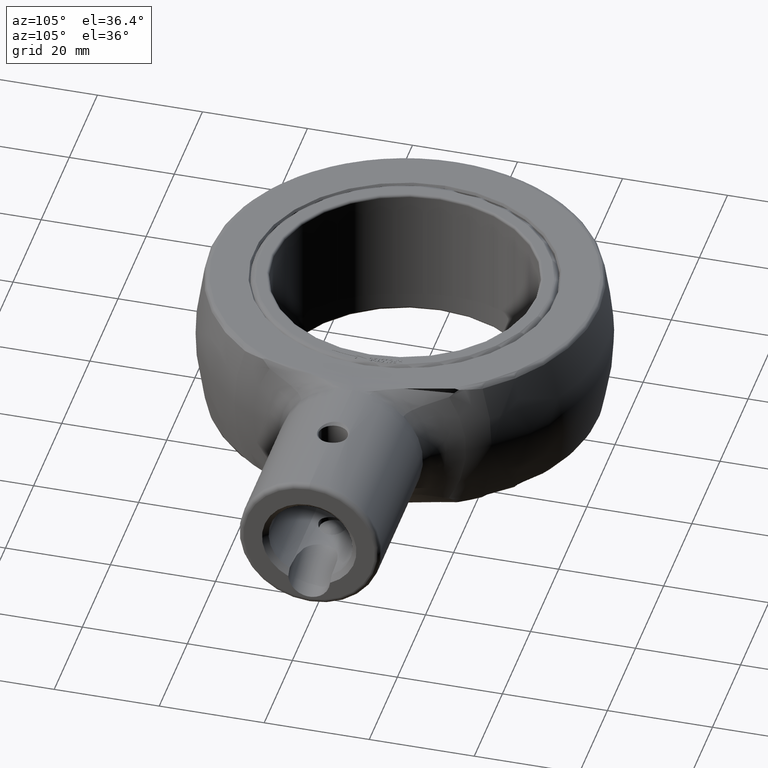
[diagram: clean part render]
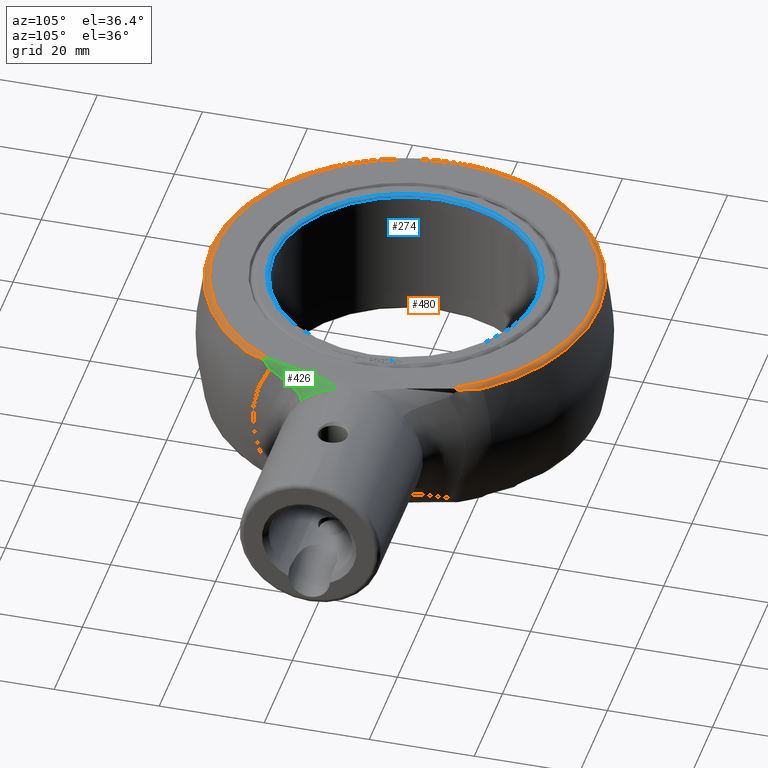
[diagram: same view with three faces highlighted in distinct colors, each labeled with its STEP entity id]
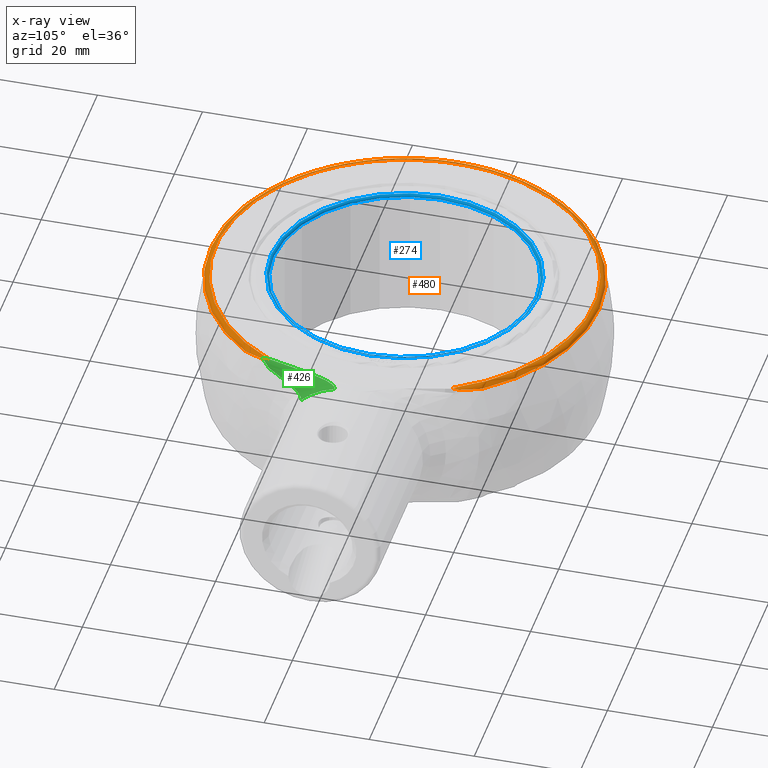
[diagram: x-ray of the same camera — body ghosted, the three highlighted faces saturated]
A machine part, auxiliary view with three faces highlighted in distinct colors.
The next image is the same camera in x-ray (body ghosted, the three faces saturated) — at least one of them is partly hidden behind the body in this view.
Their STEP definitions:

[orange] entity #480 — the highlighted toroidal blend (fillet) surface has major radius 36.0079 mm and minor (blend) radius 1 mm.
#480 = ADVANCED_FACE( '', ( #963 ), #964, .T. );
#963 = FACE_OUTER_BOUND( '', #3098, .T. );
#964 = TOROIDAL_SURFACE( '', #3099, 36.0078940808788, 1.00000000000000 );
#3098 = EDGE_LOOP( '', ( #4312, #4313, #4314, #4315, #4316, #4317 ) );
#3099 = AXIS2_PLACEMENT_3D( '', #4318, #4319, #4320 );
#4312 = ORIENTED_EDGE( '', *, *, #4737, .T. );
#4313 = ORIENTED_EDGE( '', *, *, #4751, .T. );
#4314 = ORIENTED_EDGE( '', *, *, #4612, .T. );
#4315 = ORIENTED_EDGE( '', *, *, #4758, .T. );
#4316 = ORIENTED_EDGE( '', *, *, #4789, .T. );
#4317 = ORIENTED_EDGE( '', *, *, #4639, .F. );
#4318 = CARTESIAN_POINT( '', ( 0.000000000000000, 0.000000000000000, 12.0000000000000 ) );
#4319 = DIRECTION( '', ( 0.000000000000000, 0.000000000000000, 1.00000000000000 ) );
#4320 = DIRECTION( '', ( 1.00000000000000, 0.000000000000000, 0.000000000000000 ) );
#4612 = EDGE_CURVE( '', #5143, #5144, #5145, .T. );
#4639 = EDGE_CURVE( '', #5184, #5185, #5186, .T. );
#4737 = EDGE_CURVE( '', #5184, #5328, #5330, .T. );
#4751 = EDGE_CURVE( '', #5328, #5143, #5348, .T. );
#4758 = EDGE_CURVE( '', #5144, #5356, #5358, .F. );
#4789 = EDGE_CURVE( '', #5356, #5185, #5396, .T. );
#5143 = VERTEX_POINT( '', #6406 );
#5144 = VERTEX_POINT( '', #6407 );
#5145 = CIRCLE( '', #6408, 36.9774429396723 );
#5184 = VERTEX_POINT( '', #6731 );
#5185 = VERTEX_POINT( '', #6732 );
#5186 = CIRCLE( '', #6733, 36.0078940808788 );
#5328 = VERTEX_POINT( '', #7211 );
#5330 = B_SPLINE_CURVE_WITH_KNOTS( '', 3, ( #7251, #7252, #7253, #7254, #7255, #7256, #7257, #7258, #7259, #7260, #7261, #7262 ), .UNSPECIFIED., .F., .F., ( 4, 1, 1, 1, 1, 1, 1, 1, 1, 4 ), ( 0.000000000000000, 0.0865878609526294, 0.167858210973193, 0.243787683493288, 0.314356473680625, 0.379549489899193, 0.439357676151105, 0.493779709834398, 0.529455147720607, 0.563971679073989 ), .UNSPECIFIED. );
#5348 = B_SPLINE_CURVE_WITH_KNOTS( '', 3, ( #7445, #7446, #7447, #7448, #7449, #7450, #7451, #7452, #7453, #7454, #7455, #7456, #7457, #7458, #7459, #7460, #7461, #7462, #7463, #7464, #7465, #7466, #7467, #7468, #7469 ), .UNSPECIFIED., .F., .F., ( 4, 2, 2, 2, 2, 2, 1, 1, 2, 2, 1, 2, 2, 4 ), ( 0.000000000000000, 0.00115855205509146, 0.00173782808263719, 0.00202746609641005, 0.00231710411018291, 0.00260674212395577, 0.00289638013772863, 0.00347565616527435, 0.00405493219282007, 0.00434457020659292, 0.00448938921347936, 0.00456179871692257, 0.00459800346864418, 0.00463420822036579 ), .UNSPECIFIED. );
#5356 = VERTEX_POINT( '', #7558 );
#5358 = B_SPLINE_CURVE_WITH_KNOTS( '', 3, ( #7601, #7602, #7603, #7604, #7605, #7606, #7607, #7608, #7609, #7610, #7611, #7612, #7613, #7614, #7615, #7616, #7617, #7618, #7619, #7620, #7621, #7622, #7623, #7624, #7625 ), .UNSPECIFIED., .F., .F., ( 4, 2, 2, 2, 2, 2, 1, 1, 2, 2, 1, 2, 2, 4 ), ( 0.000000000000000, 0.00115848991582571, 0.00173773487373856, 0.00202735735269499, 0.00231697983165142, 0.00260660231060784, 0.00289622478956427, 0.00347546974747713, 0.00405471470538999, 0.00434433718434642, 0.00448914842382464, 0.00456155404356374, 0.00459775685343330, 0.00463395966330285 ), .UNSPECIFIED. );
#5396 = B_SPLINE_CURVE_WITH_KNOTS( '', 3, ( #7802, #7803, #7804, #7805, #7806, #7807, #7808, #7809 ), .UNSPECIFIED., .F., .F., ( 4, 1, 1, 1, 1, 4 ), ( 0.435576334587194, 0.470287726597308, 0.506172990911875, 0.641548304705766, 0.806219911045203, 1.00000000000000 ), .UNSPECIFIED. );
#6406 = CARTESIAN_POINT( '', ( 29.2328142426363, 22.6445105447708, 12.2448979591837 ) );
#6407 = CARTESIAN_POINT( '', ( 29.2328104763663, -22.6445154068170, 12.2448979591837 ) );
#6408 = AXIS2_PLACEMENT_3D( '', #8024, #8025, #8026 );
#6731 = CARTESIAN_POINT( '', ( 31.5000000000000, 17.4447251666453, 13.0000000000000 ) );
#6732 = CARTESIAN_POINT( '', ( 31.5000000000000, -17.4447251666453, 13.0000000000000 ) );
#6733 = AXIS2_PLACEMENT_3D( '', #8041, #8042, #8043 );
#7211 = CARTESIAN_POINT( '', ( 31.5000113911669, 18.6501313755247, 12.8008318857606 ) );
#7251 = CARTESIAN_POINT( '', ( 31.5000000000000, 17.4447251666453, 13.0000000000000 ) );
#7252 = CARTESIAN_POINT( '', ( 31.5000489476427, 17.5075829193345, 12.9992010234954 ) );
#7253 = CARTESIAN_POINT( '', ( 31.5001438369682, 17.6294382209452, 12.9976521370211 ) );
#7254 = CARTESIAN_POINT( '', ( 31.5005375105780, 17.8060603396254, 12.9854019149077 ) );
#7255 = CARTESIAN_POINT( '', ( 31.5007558628753, 17.9704333544789, 12.9672558364756 ) );
#7256 = CARTESIAN_POINT( '', ( 31.5007344834540, 18.1223345994853, 12.9437294785625 ) );
#7257 = CARTESIAN_POINT( '', ( 31.5004928552315, 18.2616188214822, 12.9160944575910 ) );
#7258 = CARTESIAN_POINT( '', ( 31.5001460052368, 18.3882327312582, 12.8854076419538 ) );
#7259 = CARTESIAN_POINT( '', ( 31.4999742919316, 18.4928025367138, 12.8552083142122 ) );
#7260 = CARTESIAN_POINT( '', ( 31.5000104061328, 18.5787870391451, 12.8270602874714 ) );
#7261 = CARTESIAN_POINT( '', ( 31.5000187025930, 18.6265628941357, 12.8093446514115 ) );
#7262 = CARTESIAN_POINT( '', ( 31.5000227823337, 18.6500564193150, 12.8006330806417 ) );
#7445 = CARTESIAN_POINT( '', ( 31.5001287146582, 18.6501236833285, 12.8005392051847 ) );
#7446 = CARTESIAN_POINT( '', ( 31.3448647440102, 19.0024757811820, 12.7661723980872 ) );
#7447 = CARTESIAN_POINT( '', ( 31.1814897206595, 19.3503992511827, 12.7280794223539 ) );
#7448 = CARTESIAN_POINT( '', ( 30.9237458343565, 19.8654752951788, 12.6660958923628 ) );
#7449 = CARTESIAN_POINT( '', ( 30.8357171753714, 20.0360321536327, 12.6446268254298 ) );
#7450 = CARTESIAN_POINT( '', ( 30.7004332326239, 20.2901407658371, 12.6113008997660 ) );
#7451 = CARTESIAN_POINT( '', ( 30.6547937115685, 20.3745643241947, 12.6000040246650 ) );
#7452 = CARTESIAN_POINT( '', ( 30.5624420927229, 20.5427949805582, 12.5770558722702 ) );
#7453 = CARTESIAN_POINT( '', ( 30.5157506465693, 20.6265647245076, 12.5654097401190 ) );
#7454 = CARTESIAN_POINT( '', ( 30.4213283433030, 20.7934105014034, 12.5417894609873 ) );
#7455 = CARTESIAN_POINT( '', ( 30.3735998949014, 20.8764873637288, 12.5298110454171 ) );
#7456 = CARTESIAN_POINT( '', ( 30.2770773423465, 21.0419383830413, 12.5055729830518 ) );
#7457 = CARTESIAN_POINT( '', ( 30.1306991463084, 21.2890625278515, 12.4687884049928 ) );
#7458 = CARTESIAN_POINT( '', ( 29.8787272601102, 21.6956699282621, 12.4054613229745 ) );
#7459 = CARTESIAN_POINT( '', ( 29.6685099818174, 22.0153157598813, 12.3528883766791 ) );
#7460 = CARTESIAN_POINT( '', ( 29.5075618815541, 22.2529208982591, 12.3128309471216 ) );
#7461 = CARTESIAN_POINT( '', ( 29.4533621064518, 22.3317716801269, 12.2993731442231 ) );
#7462 = CARTESIAN_POINT( '', ( 29.3712433681512, 22.4495004597769, 12.2790427432037 ) );
#7463 = CARTESIAN_POINT( '', ( 29.3299856103519, 22.5082188806569, 12.2688431990076 ) );
#7464 = CARTESIAN_POINT( '', ( 29.2884293733822, 22.5667180897863, 12.2585942855671 ) );
#7465 = CARTESIAN_POINT( '', ( 29.2676014296714, 22.5959311346904, 12.2534617794478 ) );
#7466 = CARTESIAN_POINT( '', ( 29.2606466085455, 22.6056683364539, 12.2517481436789 ) );
#7467 = CARTESIAN_POINT( '', ( 29.2467422622426, 22.6250985906089, 12.2483268326939 ) );
#7468 = CARTESIAN_POINT( '', ( 29.2397822035572, 22.6348076219927, 12.2466136581381 ) );
#7469 = CARTESIAN_POINT( '', ( 29.2328142426363, 22.6445105447708, 12.2448979591835 ) );
#7558 = CARTESIAN_POINT( '', ( 31.5000118181246, -18.6502100522119, 12.8008151638224 ) );
#7601 = CARTESIAN_POINT( '', ( 31.5000236837207, -18.6503542643097, 12.8005189205243 ) );
#7602 = CARTESIAN_POINT( '', ( 31.3447650762109, -19.0026859842570, 12.7661520365855 ) );
#7603 = CARTESIAN_POINT( '', ( 31.1813961358071, -19.3505893663471, 12.7280594398113 ) );
#7604 = CARTESIAN_POINT( '', ( 30.9236625765072, -19.8656357632004, 12.6660770850525 ) );
#7605 = CARTESIAN_POINT( '', ( 30.8356375602169, -20.0361828200139, 12.6446085109667 ) );
#7606 = CARTESIAN_POINT( '', ( 30.7003593973579, -20.2902768569427, 12.6112834663686 ) );
#7607 = CARTESIAN_POINT( '', ( 30.6547218729054, -20.3746955465057, 12.5999869128806 ) );
#7608 = CARTESIAN_POINT( '', ( 30.5623742737399, -20.5429166570480, 12.5770394291308 ) );
#7609 = CARTESIAN_POINT( '', ( 30.5156848870864, -20.6266816570309, 12.5653936530970 ) );
#7610 = CARTESIAN_POINT( '', ( 30.4212668039503, -20.7935180046636, 12.5417741278334 ) );
#7611 = CARTESIAN_POINT( '', ( 30.3735405256047, -20.8765901851231, 12.5297960944301 ) );
#7612 = CARTESIAN_POINT( '', ( 30.2770224014437, -21.0420318946854, 12.5055588598924 ) );
#7613 = CARTESIAN_POINT( '', ( 30.1306509516438, -21.2891421458910, 12.4687756693739 ) );
#7614 = CARTESIAN_POINT( '', ( 29.8786909501124, -21.6957268017305, 12.4054515027373 ) );
#7615 = CARTESIAN_POINT( '', ( 29.6684839477805, -22.0153549419603, 12.3528816182293 ) );
#7616 = CARTESIAN_POINT( '', ( 29.5075439309684, -22.2529470317350, 12.3128266057577 ) );
#7617 = CARTESIAN_POINT( '', ( 29.4533469121753, -22.3317934960744, 12.2993696385104 ) );
#7618 = CARTESIAN_POINT( '', ( 29.3712323932296, -22.4495158682194, 12.2790405266303 ) );
#7619 = CARTESIAN_POINT( '', ( 29.3299767667911, -22.5082311018441, 12.2688416360189 ) );
#7620 = CARTESIAN_POINT( '', ( 29.2884226944588, -22.5667271487881, 12.2585933885329 ) );
#7621 = CARTESIAN_POINT( '', ( 29.2675958386714, -22.5959386168020, 12.2534612173574 ) );
#7622 = CARTESIAN_POINT( '', ( 29.2606413815030, -22.6056752902402, 12.2517476939330 ) );
#7623 = CARTESIAN_POINT( '', ( 29.2467377708876, -22.6251045026267, 12.2483266095150 ) );
#7624 = CARTESIAN_POINT( '', ( 29.2397780712400, -22.6348130063162, 12.2466135454293 ) );
#7625 = CARTESIAN_POINT( '', ( 29.2328104763663, -22.6445154068170, 12.2448979591837 ) );
#7802 = CARTESIAN_POINT( '', ( 31.5000236362493, -18.6501305124489, 12.8006042805430 ) );
#7803 = CARTESIAN_POINT( '', ( 31.5000197199086, -18.6265284782144, 12.8093544159085 ) );
#7804 = CARTESIAN_POINT( '', ( 31.5000117547840, -18.5785262344861, 12.8271505993347 ) );
#7805 = CARTESIAN_POINT( '', ( 31.4999477493449, -18.4365536259088, 12.8736400431873 ) );
#7806 = CARTESIAN_POINT( '', ( 31.5007964951574, -18.1999997504230, 12.9332053227337 ) );
#7807 = CARTESIAN_POINT( '', ( 31.5006703482996, -17.8453716952338, 12.9887018727222 ) );
#7808 = CARTESIAN_POINT( '', ( 31.5002352275926, -17.5853134525131, 12.9960354471232 ) );
#7809 = CARTESIAN_POINT( '', ( 31.5000000000001, -17.4447251666453, 13.0000000000000 ) );
#8024 = CARTESIAN_POINT( '', ( 0.000000000000000, 0.000000000000000, 12.2448979591837 ) );
#8025 = DIRECTION( '', ( 0.000000000000000, 0.000000000000000, 1.00000000000000 ) );
#8026 = DIRECTION( '', ( 1.00000000000000, 0.000000000000000, 0.000000000000000 ) );
#8041 = CARTESIAN_POINT( '', ( 0.000000000000000, 0.000000000000000, 13.0000000000000 ) );
#8042 = DIRECTION( '', ( 0.000000000000000, 0.000000000000000, 1.00000000000000 ) );
#8043 = DIRECTION( '', ( 1.00000000000000, 0.000000000000000, 0.000000000000000 ) );

[blue] entity #274 — the highlighted toroidal blend (fillet) surface has major radius 25.5 mm and minor (blend) radius 0.5 mm.
#274 = ADVANCED_FACE( '', ( #610, #611 ), #612, .T. );
#610 = FACE_OUTER_BOUND( '', #1072, .T. );
#611 = FACE_OUTER_BOUND( '', #1073, .T. );
#612 = TOROIDAL_SURFACE( '', #1074, 25.5000000000000, 0.500000000000000 );
#1072 = EDGE_LOOP( '', ( #3279 ) );
#1073 = EDGE_LOOP( '', ( #3280 ) );
#1074 = AXIS2_PLACEMENT_3D( '', #3281, #3282, #3283 );
#3279 = ORIENTED_EDGE( '', *, *, #4516, .F. );
#3280 = ORIENTED_EDGE( '', *, *, #4517, .F. );
#3281 = CARTESIAN_POINT( '', ( 0.000000000000000, 0.000000000000000, 12.5000000000000 ) );
#3282 = DIRECTION( '', ( 0.000000000000000, 0.000000000000000, -1.00000000000000 ) );
#3283 = DIRECTION( '', ( -1.00000000000000, 0.000000000000000, 0.000000000000000 ) );
#4516 = EDGE_CURVE( '', #4992, #4992, #4993, .F. );
#4517 = EDGE_CURVE( '', #4994, #4994, #4995, .T. );
#4992 = VERTEX_POINT( '', #5859 );
#4993 = CIRCLE( '', #5860, 25.0000000000000 );
#4994 = VERTEX_POINT( '', #5861 );
#4995 = CIRCLE( '', #5862, 25.5000000000000 );
#5859 = CARTESIAN_POINT( '', ( -25.0000000000000, 0.000000000000000, 12.5000000000000 ) );
#5860 = AXIS2_PLACEMENT_3D( '', #7988, #7989, #7990 );
#5861 = CARTESIAN_POINT( '', ( -25.5000000000000, 0.000000000000000, 13.0000000000000 ) );
#5862 = AXIS2_PLACEMENT_3D( '', #7991, #7992, #7993 );
#7988 = CARTESIAN_POINT( '', ( 0.000000000000000, 0.000000000000000, 12.5000000000000 ) );
#7989 = DIRECTION( '', ( 0.000000000000000, 0.000000000000000, -1.00000000000000 ) );
#7990 = DIRECTION( '', ( -1.00000000000000, 0.000000000000000, 0.000000000000000 ) );
#7991 = CARTESIAN_POINT( '', ( 0.000000000000000, 0.000000000000000, 13.0000000000000 ) );
#7992 = DIRECTION( '', ( 0.000000000000000, 0.000000000000000, -1.00000000000000 ) );
#7993 = DIRECTION( '', ( -1.00000000000000, 0.000000000000000, 0.000000000000000 ) );

[green] entity #426 — the highlighted face is a freeform B-spline surface patch.
#426 = ADVANCED_FACE( '', ( #872 ), #873, .T. );
#872 = FACE_OUTER_BOUND( '', #2815, .T. );
#873 = B_SPLINE_SURFACE_WITH_KNOTS( '', 3, 3, ( ( #2816, #2817, #2818, #2819 ), ( #2820, #2821, #2822, #2823 ), ( #2824, #2825, #2826, #2827 ), ( #2828, #2829, #2830, #2831 ), ( #2832, #2833, #2834, #2835 ), ( #2836, #2837, #2838, #2839 ), ( #2840, #2841, #2842, #2843 ), ( #2844, #2845, #2846, #2847 ), ( #2848, #2849, #2850, #2851 ), ( #2852, #2853, #2854, #2855 ), ( #2856, #2857, #2858, #2859 ), ( #2860, #2861, #2862, #2863 ) ), .UNSPECIFIED., .F., .F., .F., ( 4, 2, 2, 2, 2, 4 ), ( 4, 4 ), ( 0.000000000000000, 0.249624581030578, 0.498419434361757, 0.748778174956495, 0.874389087478248, 1.00000000000000 ), ( 0.000000000000000, 1.00000000000000 ), .UNSPECIFIED. );
#2815 = EDGE_LOOP( '', ( #4046, #4047, #4048, #4049, #4050 ) );
#2816 = CARTESIAN_POINT( '', ( 31.5000000000000, -17.4447251666454, 13.0000000000016 ) );
#2817 = CARTESIAN_POINT( '', ( 33.3454079548750, -10.4208855872480, 13.0328033496461 ) );
#2818 = CARTESIAN_POINT( '', ( 35.1908159097499, -3.39704600785061, 13.0656066992905 ) );
#2819 = CARTESIAN_POINT( '', ( 37.5000000000000, -3.39704600785061, 13.0656066992905 ) );
#2820 = CARTESIAN_POINT( '', ( 31.5000000000000, -17.6288429477602, 12.9999526900055 ) );
#2821 = CARTESIAN_POINT( '', ( 33.3528012806032, -10.8161202016103, 12.9539542787349 ) );
#2822 = CARTESIAN_POINT( '', ( 35.2056025612064, -4.00339745546041, 12.9079558674643 ) );
#2823 = CARTESIAN_POINT( '', ( 37.5000000000000, -4.00339745546041, 12.9079558674643 ) );
#2824 = CARTESIAN_POINT( '', ( 31.5000000000000, -17.8011666820488, 12.9891223004466 ) );
#2825 = CARTESIAN_POINT( '', ( 33.3600550023725, -11.1999581206259, 12.8485759460237 ) );
#2826 = CARTESIAN_POINT( '', ( 35.2201100047451, -4.59874955920297, 12.7080295916008 ) );
#2827 = CARTESIAN_POINT( '', ( 37.5000000000000, -4.59874955920297, 12.7080295916008 ) );
#2828 = CARTESIAN_POINT( '', ( 31.5000000000000, -18.1611037191160, 12.9405184085661 ) );
#2829 = CARTESIAN_POINT( '', ( 33.3735721137406, -11.9575697481648, 12.5844022527143 ) );
#2830 = CARTESIAN_POINT( '', ( 35.2471442274814, -5.75403577721362, 12.2282860968624 ) );
#2831 = CARTESIAN_POINT( '', ( 37.5000000000000, -5.75403577721362, 12.2282860968624 ) );
#2832 = CARTESIAN_POINT( '', ( 31.5000000000000, -18.3305732635017, 12.9053516457616 ) );
#2833 = CARTESIAN_POINT( '', ( 33.3798387149652, -12.3223227978670, 12.4270460653313 ) );
#2834 = CARTESIAN_POINT( '', ( 35.2596774299304, -6.31407233223240, 11.9487404849009 ) );
#2835 = CARTESIAN_POINT( '', ( 37.5000000000000, -6.31407233223240, 11.9487404849009 ) );
#2836 = CARTESIAN_POINT( '', ( 31.5000000000000, -18.6805598387433, 12.7959465636334 ) );
#2837 = CARTESIAN_POINT( '', ( 33.3907629590438, -13.0370224882882, 12.0544121643894 ) );
#2838 = CARTESIAN_POINT( '', ( 35.2815259180876, -7.39348513783321, 11.3128777651453 ) );
#2839 = CARTESIAN_POINT( '', ( 37.5000000000000, -7.39348513783321, 11.3128777651453 ) );
#2840 = CARTESIAN_POINT( '', ( 31.5000000000000, -18.8391575431253, 12.7297703398222 ) );
#2841 = CARTESIAN_POINT( '', ( 33.3954102406205, -13.3758669898227, 11.8429313532849 ) );
#2842 = CARTESIAN_POINT( '', ( 35.2908204812410, -7.91257643652021, 10.9560923667476 ) );
#2843 = CARTESIAN_POINT( '', ( 37.5000000000000, -7.91257643652021, 10.9560923667476 ) );
#2844 = CARTESIAN_POINT( '', ( 31.5000000000000, -19.0746241396047, 12.5800016523227 ) );
#2845 = CARTESIAN_POINT( '', ( 33.4006181732900, -13.8628287170524, 11.4743284374121 ) );
#2846 = CARTESIAN_POINT( '', ( 35.3012363465801, -8.65103329450004, 10.3686552225016 ) );
#2847 = CARTESIAN_POINT( '', ( 37.5000000000000, -8.65103329450004, 10.3686552225016 ) );
#2848 = CARTESIAN_POINT( '', ( 31.5000000000000, -19.1522796875439, 12.5202763232164 ) );
#2849 = CARTESIAN_POINT( '', ( 33.4020612718147, -14.0215763094339, 11.3420119967380 ) );
#2850 = CARTESIAN_POINT( '', ( 35.3041225436294, -8.89087293132384, 10.1637476702597 ) );
#2851 = CARTESIAN_POINT( '', ( 37.5000000000000, -8.89087293132384, 10.1637476702597 ) );
#2852 = CARTESIAN_POINT( '', ( 31.5000000000000, -19.2811296930403, 12.3886530392337 ) );
#2853 = CARTESIAN_POINT( '', ( 33.4042659998193, -14.3183750865774, 11.0631496222188 ) );
#2854 = CARTESIAN_POINT( '', ( 35.3085319996387, -9.35562048011443, 9.73764620520384 ) );
#2855 = CARTESIAN_POINT( '', ( 37.5000000000000, -9.35562048011443, 9.73764620520384 ) );
#2856 = CARTESIAN_POINT( '', ( 31.5000000000000, -19.3322581692313, 12.3166807807174 ) );
#2857 = CARTESIAN_POINT( '', ( 33.4050276292993, -14.4563931674078, 10.9165666431424 ) );
#2858 = CARTESIAN_POINT( '', ( 35.3100552585987, -9.58052816558420, 9.51645250556742 ) );
#2859 = CARTESIAN_POINT( '', ( 37.5000000000000, -9.58052816558420, 9.51645250556742 ) );
#2860 = CARTESIAN_POINT( '', ( 31.5000000000000, -19.3670154220189, 12.2448979591837 ) );
#2861 = CARTESIAN_POINT( '', ( 33.4054046539159, -14.5822168899480, 10.7662780440798 ) );
#2862 = CARTESIAN_POINT( '', ( 35.3108093078317, -9.79741835787709, 9.28765812897594 ) );
#2863 = CARTESIAN_POINT( '', ( 37.5000000000000, -9.79741835787709, 9.28765812897594 ) );
#4046 = ORIENTED_EDGE( '', *, *, #4789, .F. );
#4047 = ORIENTED_EDGE( '', *, *, #4757, .T. );
#4048 = ORIENTED_EDGE( '', *, *, #4774, .T. );
#4049 = ORIENTED_EDGE( '', *, *, #4790, .F. );
#4050 = ORIENTED_EDGE( '', *, *, #4791, .F. );
#4757 = EDGE_CURVE( '', #5356, #5354, #5357, .T. );
#4774 = EDGE_CURVE( '', #5354, #5378, #5379, .T. );
#4789 = EDGE_CURVE( '', #5356, #5185, #5396, .T. );
#4790 = EDGE_CURVE( '', #5397, #5378, #5398, .T. );
#4791 = EDGE_CURVE( '', #5185, #5397, #5399, .T. );
#5185 = VERTEX_POINT( '', #6732 );
#5354 = VERTEX_POINT( '', #7475 );
#5356 = VERTEX_POINT( '', #7558 );
#5357 = B_SPLINE_CURVE_WITH_KNOTS( '', 3, ( #7559, #7560, #7561, #7562, #7563, #7564, #7565, #7566, #7567, #7568, #7569, #7570, #7571, #7572, #7573, #7574, #7575, #7576, #7577, #7578, #7579, #7580, #7581, #7582, #7583, #7584, #7585, #7586, #7587, #7588, #7589, #7590, #7591, #7592, #7593, #7594, #7595, #7596, #7597, #7598, #7599, #7600 ), .UNSPECIFIED., .F., .F., ( 4, 1, 1, 2, 2, 2, 2, 1, 1, 1, 1, 2, 2, 2, 2, 2, 1, 1, 2, 2, 2, 2, 2, 2, 4 ), ( 0.000000000000000, 0.000138530939660160, 0.000277061879320321, 0.000415592818980481, 0.000484858288810561, 0.000554123758640640, 0.000623389228470719, 0.000692654698300798, 0.000831185637960941, 0.000969716577621083, 0.00110824751728123, 0.00124677845694137, 0.00131604392677144, 0.00138530939660150, 0.00152384033626164, 0.00166237127592178, 0.00173163674575184, 0.00180090221558191, 0.00187016768541198, 0.00193943315524205, 0.00197406589015708, 0.00200869862507212, 0.00207796409490217, 0.00214722956473223, 0.00221649503456229 ), .UNSPECIFIED. );
#5378 = VERTEX_POINT( '', #7706 );
#5379 = B_SPLINE_CURVE_WITH_KNOTS( '', 3, ( #7707, #7708, #7709, #7710 ), .UNSPECIFIED., .F., .F., ( 4, 4 ), ( 0.160215621514646, 1.00000000000000 ), .UNSPECIFIED. );
#5396 = B_SPLINE_CURVE_WITH_KNOTS( '', 3, ( #7802, #7803, #7804, #7805, #7806, #7807, #7808, #7809 ), .UNSPECIFIED., .F., .F., ( 4, 1, 1, 1, 1, 4 ), ( 0.435576334587194, 0.470287726597308, 0.506172990911875, 0.641548304705766, 0.806219911045203, 1.00000000000000 ), .UNSPECIFIED. );
#5397 = VERTEX_POINT( '', #7810 );
#5398 = B_SPLINE_CURVE_WITH_KNOTS( '', 3, ( #7811, #7812, #7813, #7814, #7815, #7816 ), .UNSPECIFIED., .F., .F., ( 4, 2, 4 ), ( 0.0404837999983714, 0.0848668999988634, 0.129249999999355 ), .UNSPECIFIED. );
#5399 = B_SPLINE_CURVE_WITH_KNOTS( '', 3, ( #7817, #7818, #7819, #7820 ), .UNSPECIFIED., .F., .F., ( 4, 4 ), ( 0.000000000000000, 1.00000000000000 ), .UNSPECIFIED. );
#6732 = CARTESIAN_POINT( '', ( 31.5000000000000, -17.4447251666453, 13.0000000000000 ) );
#7475 = CARTESIAN_POINT( '', ( 32.4169938659616, -17.0868948867026, 11.5402848788714 ) );
#7558 = CARTESIAN_POINT( '', ( 31.5000118181246, -18.6502100522119, 12.8008151638224 ) );
#7559 = CARTESIAN_POINT( '', ( 31.5000215456692, -18.6500562400301, 12.8010814027502 ) );
#7560 = CARTESIAN_POINT( '', ( 31.5216588763975, -18.6138165681622, 12.7819625046236 ) );
#7561 = CARTESIAN_POINT( '', ( 31.5645748498061, -18.5423630993071, 12.7418149562157 ) );
#7562 = CARTESIAN_POINT( '', ( 31.6279076321689, -18.4380666718328, 12.6761945217952 ) );
#7563 = CARTESIAN_POINT( '', ( 31.6694623893921, -18.3702421200207, 12.6292051380396 ) );
#7564 = CARTESIAN_POINT( '', ( 31.7003892116873, -18.3199071694535, 12.5929207670404 ) );
#7565 = CARTESIAN_POINT( '', ( 31.7106582844318, -18.3032175213421, 12.5806526315198 ) );
#7566 = CARTESIAN_POINT( '', ( 31.7311185627613, -18.2699952202433, 12.5558026414129 ) );
#7567 = CARTESIAN_POINT( '', ( 31.7413128882562, -18.2534575038033, 12.5432168635958 ) );
#7568 = CARTESIAN_POINT( '', ( 31.7616091715931, -18.2205437708533, 12.5177875270993 ) );
#7569 = CARTESIAN_POINT( '', ( 31.7717095745494, -18.2041702585467, 12.5049460969377 ) );
#7570 = CARTESIAN_POINT( '', ( 31.7918199012937, -18.1715617618962, 12.4790448620427 ) );
#7571 = CARTESIAN_POINT( '', ( 31.8218533838638, -18.1228299791376, 12.4398981878913 ) );
#7572 = CARTESIAN_POINT( '', ( 31.8712114017718, -18.0428353870230, 12.3727933716755 ) );
#7573 = CARTESIAN_POINT( '', ( 31.9293959117761, -17.9484567854344, 12.2897285435363 ) );
#7574 = CARTESIAN_POINT( '', ( 31.9865863213363, -17.8554741376103, 12.2044061904918 ) );
#7575 = CARTESIAN_POINT( '', ( 32.0240745017801, -17.7943379532143, 12.1461243446832 ) );
#7576 = CARTESIAN_POINT( '', ( 32.0519563077216, -17.7488052001401, 12.1018916903940 ) );
#7577 = CARTESIAN_POINT( '', ( 32.0612110844657, -17.7336816695004, 12.0870595968822 ) );
#7578 = CARTESIAN_POINT( '', ( 32.0796429521098, -17.7035448903012, 12.0572176500676 ) );
#7579 = CARTESIAN_POINT( '', ( 32.0888207215002, -17.6885289106096, 12.0422096218054 ) );
#7580 = CARTESIAN_POINT( '', ( 32.1162420462510, -17.6436024985257, 11.9969833636893 ) );
#7581 = CARTESIAN_POINT( '', ( 32.1343704509254, -17.6138218489333, 11.9665635138066 ) );
#7582 = CARTESIAN_POINT( '', ( 32.1703705727685, -17.5542994487379, 11.9055286203575 ) );
#7583 = CARTESIAN_POINT( '', ( 32.1882417457291, -17.5245624346270, 11.8749083231172 ) );
#7584 = CARTESIAN_POINT( '', ( 32.2149058266616, -17.4796347007841, 11.8292269423698 ) );
#7585 = CARTESIAN_POINT( '', ( 32.2326347027729, -17.4495720317007, 11.7988595200573 ) );
#7586 = CARTESIAN_POINT( '', ( 32.2591226323733, -17.4038689884968, 11.7538782128779 ) );
#7587 = CARTESIAN_POINT( '', ( 32.2767431494019, -17.3727373445478, 11.7245571225642 ) );
#7588 = CARTESIAN_POINT( '', ( 32.2943667790587, -17.3410901941455, 11.6957739974613 ) );
#7589 = CARTESIAN_POINT( '', ( 32.3031801050381, -17.3250093768070, 11.6816508587940 ) );
#7590 = CARTESIAN_POINT( '', ( 32.3164255688078, -17.3003024577255, 11.6610905857475 ) );
#7591 = CARTESIAN_POINT( '', ( 32.3208450456203, -17.2919684798327, 11.6543420315025 ) );
#7592 = CARTESIAN_POINT( '', ( 32.3296974842107, -17.2750610371099, 11.6411021010938 ) );
#7593 = CARTESIAN_POINT( '', ( 32.3341342608845, -17.2664800726860, 11.6346053099570 ) );
#7594 = CARTESIAN_POINT( '', ( 32.3474480220869, -17.2403527860962, 11.6156186195609 ) );
#7595 = CARTESIAN_POINT( '', ( 32.3562758401401, -17.2225249517849, 11.6037084798512 ) );
#7596 = CARTESIAN_POINT( '', ( 32.3738228966521, -17.1858026658181, 11.5818495195652 ) );
#7597 = CARTESIAN_POINT( '', ( 32.3825420027817, -17.1669050754443, 11.5719066365526 ) );
#7598 = CARTESIAN_POINT( '', ( 32.3998599286039, -17.1278539832523, 11.5543369755259 ) );
#7599 = CARTESIAN_POINT( '', ( 32.4084586394103, -17.1076985976382, 11.5467137349855 ) );
#7600 = CARTESIAN_POINT( '', ( 32.4169938659617, -17.0868948867024, 11.5402848788714 ) );
#7706 = CARTESIAN_POINT( '', ( 37.5000000000000, -9.79741881356908, 9.28765856103357 ) );
#7707 = CARTESIAN_POINT( '', ( 32.4169938659615, -17.0868948867026, 11.5402848788714 ) );
#7708 = CARTESIAN_POINT( '', ( 34.0232403523373, -13.1718391593129, 10.3304367884118 ) );
#7709 = CARTESIAN_POINT( '', ( 35.6615518551915, -9.79741835787709, 9.28765812897594 ) );
#7710 = CARTESIAN_POINT( '', ( 37.5000000000000, -9.79741835787709, 9.28765812897594 ) );
#7802 = CARTESIAN_POINT( '', ( 31.5000236362493, -18.6501305124489, 12.8006042805430 ) );
#7803 = CARTESIAN_POINT( '', ( 31.5000197199086, -18.6265284782144, 12.8093544159085 ) );
#7804 = CARTESIAN_POINT( '', ( 31.5000117547840, -18.5785262344861, 12.8271505993347 ) );
#7805 = CARTESIAN_POINT( '', ( 31.4999477493449, -18.4365536259088, 12.8736400431873 ) );
#7806 = CARTESIAN_POINT( '', ( 31.5007964951574, -18.1999997504230, 12.9332053227337 ) );
#7807 = CARTESIAN_POINT( '', ( 31.5006703482996, -17.8453716952338, 12.9887018727222 ) );
#7808 = CARTESIAN_POINT( '', ( 31.5002352275926, -17.5853134525131, 12.9960354471232 ) );
#7809 = CARTESIAN_POINT( '', ( 31.5000000000001, -17.4447251666453, 13.0000000000000 ) );
#7810 = CARTESIAN_POINT( '', ( 37.5000000000000, -3.39704600785061, 13.0656066992905 ) );
#7811 = CARTESIAN_POINT( '', ( 37.5000000000000, -3.39704600771688, 13.0656066993253 ) );
#7812 = CARTESIAN_POINT( '', ( 37.5000000000000, -4.61156924198934, 12.7498317491672 ) );
#7813 = CARTESIAN_POINT( '', ( 37.5000000000000, -5.78165774266629, 12.2636541965436 ) );
#7814 = CARTESIAN_POINT( '', ( 37.5000000000000, -7.94302022418744, 10.9878665000938 ) );
#7815 = CARTESIAN_POINT( '', ( 37.5000000000000, -8.93407715606796, 10.1983844737860 ) );
#7816 = CARTESIAN_POINT( '', ( 37.5000000000000, -9.79741835783944, 9.28765812901566 ) );
#7817 = CARTESIAN_POINT( '', ( 31.5000000000000, -17.4447251666453, 13.0000000000000 ) );
#7818 = CARTESIAN_POINT( '', ( 33.3454079548750, -10.4208855872479, 13.0328033496453 ) );
#7819 = CARTESIAN_POINT( '', ( 35.1908159097499, -3.39704600785061, 13.0656066992905 ) );
#7820 = CARTESIAN_POINT( '', ( 37.5000000000000, -3.39704600785061, 13.0656066992905 ) );